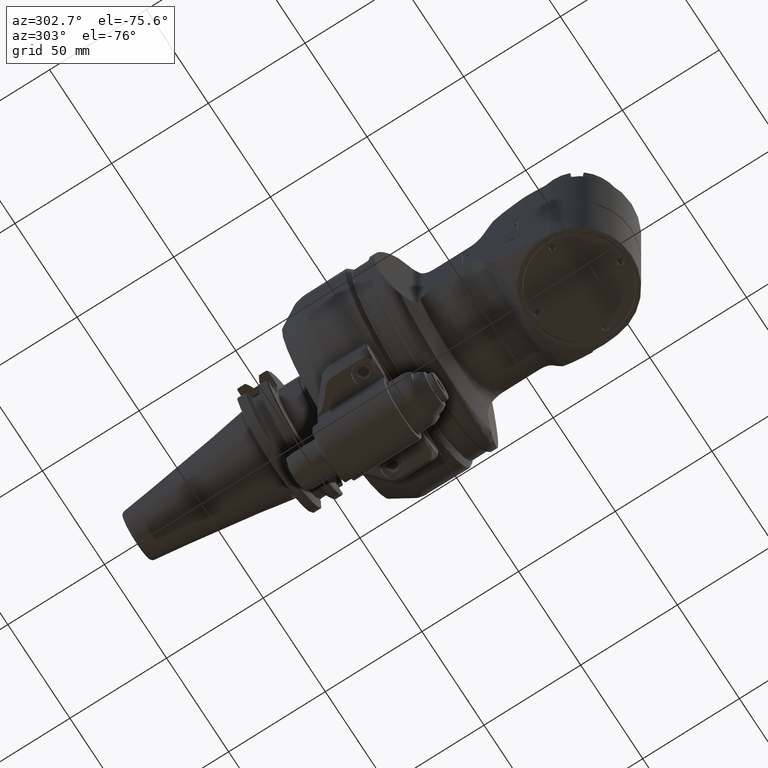
[diagram: clean part render]
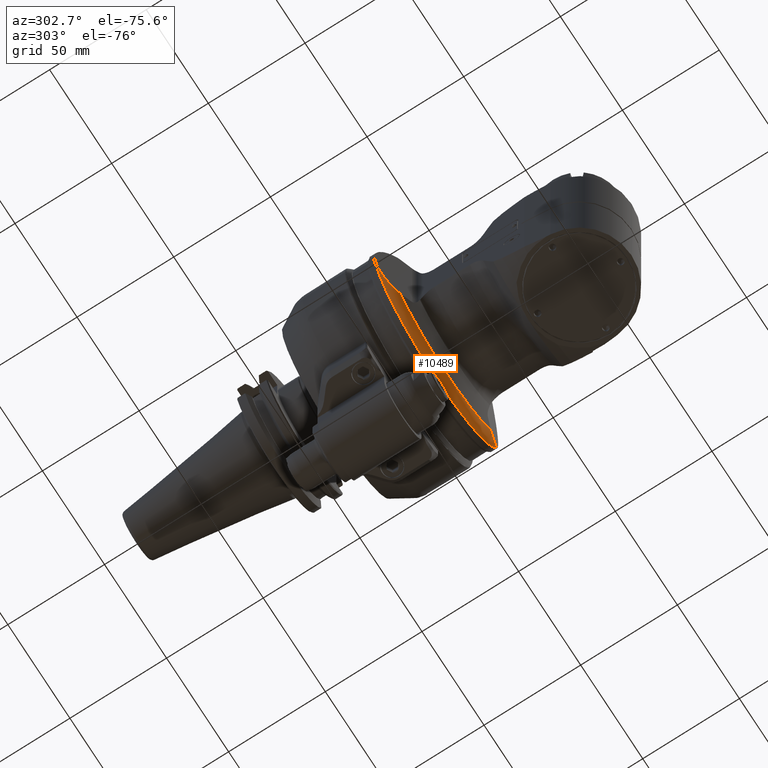
[diagram: same view with one face highlighted and labeled with its STEP entity id]
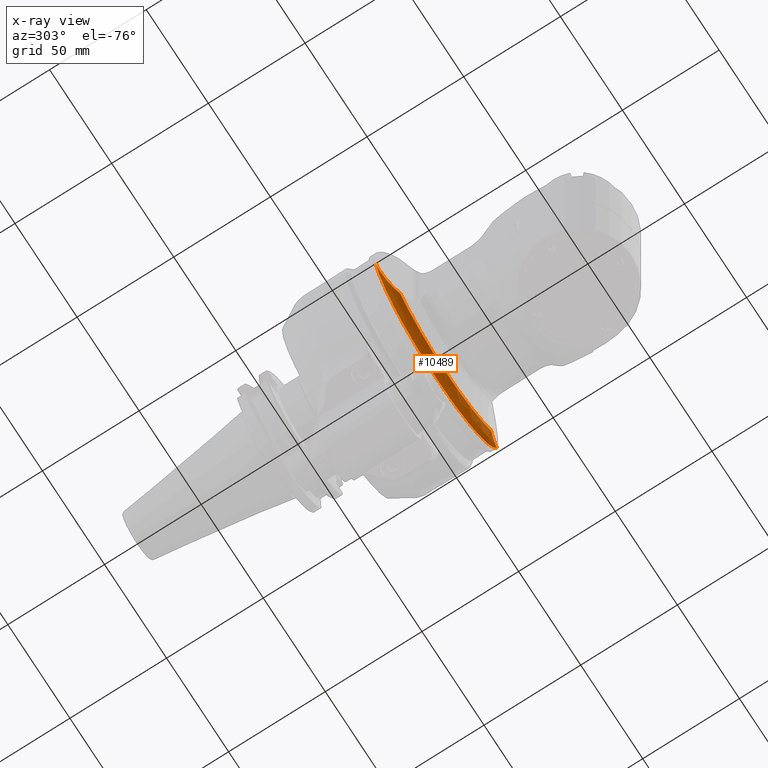
[diagram: x-ray of the same camera — body ghosted, the highlighted face saturated]
A machine part, auxiliary view. The second image highlights one B-rep face of the part: STEP entity #10489.
The next image is the same camera in x-ray: the body ghosted, the highlighted face saturated — about 0% of this face is hidden behind the body in this view.
In plain terms, the highlighted toroidal blend (fillet) surface has major radius 45 mm and minor (blend) radius 5 mm.
Its self-contained STEP definition (entity closure, byte-faithful):
#221=TOROIDAL_SURFACE('',#11307,45.,5.);
#479=B_SPLINE_CURVE_WITH_KNOTS('',3,(#16371,#16372,#16373,#16374,#16375,
#16376,#16377,#16378,#16379,#16380,#16381,#16382,#16383,#16384,#16385,#16386,
#16387,#16388),.UNSPECIFIED.,.F.,.F.,(4,2,2,2,2,2,2,2,4),(7.09037016510969,
7.87701940297548,8.17776761303021,8.47851582308494,8.80354910515076,9.12858238721658,
9.39474930405345,9.46225514204568,9.47110878449787),.UNSPECIFIED.);
#482=B_SPLINE_CURVE_WITH_KNOTS('',3,(#16437,#16438,#16439,#16440,#16441,
#16442,#16443,#16444,#16445,#16446,#16447,#16448,#16449,#16450,#16451,#16452,
#16453,#16454),.UNSPECIFIED.,.F.,.F.,(4,2,2,2,2,2,2,2,4),(2.93536062655263,
2.94421427000487,3.0117201079971,3.27788702483398,3.6029203068998,3.92795358896562,
4.22870179902035,4.52945000907508,5.31609924694026),.UNSPECIFIED.);
#833=CIRCLE('',#11297,47.11309145933);
#835=CIRCLE('',#11308,50.);
#1427=FACE_OUTER_BOUND('',#2076,.T.);
#2076=EDGE_LOOP('',(#7026,#7027,#7028,#7029));
#4261=VERTEX_POINT('',#16364);
#4262=VERTEX_POINT('',#16366);
#4263=VERTEX_POINT('',#16370);
#4268=VERTEX_POINT('',#16435);
#5334=EDGE_CURVE('',#4262,#4261,#833,.T.);
#5336=EDGE_CURVE('',#4263,#4262,#479,.T.);
#5344=EDGE_CURVE('',#4261,#4268,#482,.T.);
#5345=EDGE_CURVE('',#4268,#4263,#835,.T.);
#7026=ORIENTED_EDGE('',*,*,#5345,.T.);
#7027=ORIENTED_EDGE('',*,*,#5336,.T.);
#7028=ORIENTED_EDGE('',*,*,#5334,.T.);
#7029=ORIENTED_EDGE('',*,*,#5344,.T.);
#10489=ADVANCED_FACE('',(#1427),#221,.T.);
#11297=AXIS2_PLACEMENT_3D('',#16367,#12705,#12706);
#11307=AXIS2_PLACEMENT_3D('',#16455,#12725,#12726);
#11308=AXIS2_PLACEMENT_3D('',#16456,#12727,#12728);
#12705=DIRECTION('center_axis',(-1.,0.,0.));
#12706=DIRECTION('ref_axis',(0.,1.,1.598497119257E-10));
#12725=DIRECTION('center_axis',(-1.,0.,0.));
#12726=DIRECTION('ref_axis',(0.,1.,0.));
#12727=DIRECTION('center_axis',(1.,0.,0.));
#12728=DIRECTION('ref_axis',(0.,0.187279909699701,-0.982306589320703));
#16364=CARTESIAN_POINT('',(20.8461875034338,29.5857914051946,-36.6650287498088));
#16366=CARTESIAN_POINT('',(20.8461875004803,29.5857914026295,36.6650287600173));
#16367=CARTESIAN_POINT('Origin',(20.84618750067,0.,0.));
#16370=CARTESIAN_POINT('',(16.31464863572,9.363995485014,49.11532946603));
#16371=CARTESIAN_POINT('Ctrl Pts',(16.3146486357204,9.3639954850139,49.1153294660296));
#16372=CARTESIAN_POINT('Ctrl Pts',(16.5089546643471,12.1641130973679,48.5814780399138));
#16373=CARTESIAN_POINT('Ctrl Pts',(16.7970626489297,14.89268418197,47.7899078579087));
#16374=CARTESIAN_POINT('Ctrl Pts',(17.2779022721392,18.2335890551422,46.4688118507617));
#16375=CARTESIAN_POINT('Ctrl Pts',(17.4371534747882,19.2325943001655,46.0312727674626));
#16376=CARTESIAN_POINT('Ctrl Pts',(17.7890019232365,21.1784209335024,45.0645771002807));
#16377=CARTESIAN_POINT('Ctrl Pts',(17.9817805222086,22.1249619431992,44.5349222526508));
#16378=CARTESIAN_POINT('Ctrl Pts',(18.3765030725583,23.8625497430824,43.4504309586156));
#16379=CARTESIAN_POINT('Ctrl Pts',(18.6191470504405,24.8187856959593,42.7837721084178));
#16380=CARTESIAN_POINT('Ctrl Pts',(19.1522606848867,26.6017151146838,41.3190544357736));
#16381=CARTESIAN_POINT('Ctrl Pts',(19.4425932033076,27.4287590831445,40.5213723972789));
#16382=CARTESIAN_POINT('Ctrl Pts',(19.9758958164078,28.6338312433967,39.05613551005));
#16383=CARTESIAN_POINT('Ctrl Pts',(20.2825600158396,29.2079207962777,38.2135825467563));
#16384=CARTESIAN_POINT('Ctrl Pts',(20.6474740822835,29.5221310747006,37.2109893891602));
#16385=CARTESIAN_POINT('Ctrl Pts',(20.738047373882,29.5748920999617,36.9621413156877));
#16386=CARTESIAN_POINT('Ctrl Pts',(20.825030055835,29.5852601580148,36.7231583611383));
#16387=CARTESIAN_POINT('Ctrl Pts',(20.8354969146307,29.5858990840588,36.6944009029444));
#16388=CARTESIAN_POINT('Ctrl Pts',(20.8461875003858,29.5857914029915,36.6650287599816));
#16435=CARTESIAN_POINT('',(16.31464863573,9.36399548502,-49.11532946603));
#16437=CARTESIAN_POINT('Ctrl Pts',(20.8461875040092,29.585791402955,-36.6650287500264));
#16438=CARTESIAN_POINT('Ctrl Pts',(20.8354969169956,29.5858990842023,-36.694400896447));
#16439=CARTESIAN_POINT('Ctrl Pts',(20.8250300569742,29.5852601581505,-36.7231583580084));
#16440=CARTESIAN_POINT('Ctrl Pts',(20.738047373882,29.5748920999617,-36.9621413156877));
#16441=CARTESIAN_POINT('Ctrl Pts',(20.6474740822835,29.5221310747006,-37.2109893891602));
#16442=CARTESIAN_POINT('Ctrl Pts',(20.2825600158396,29.2079207962777,-38.2135825467563));
#16443=CARTESIAN_POINT('Ctrl Pts',(19.9758958164078,28.6338312433967,-39.05613551005));
#16444=CARTESIAN_POINT('Ctrl Pts',(19.4425932033076,27.4287590831445,-40.5213723972789));
#16445=CARTESIAN_POINT('Ctrl Pts',(19.1522606848867,26.6017151146837,-41.3190544357736));
#16446=CARTESIAN_POINT('Ctrl Pts',(18.6191470504405,24.8187856959593,-42.7837721084178));
#16447=CARTESIAN_POINT('Ctrl Pts',(18.3765030725583,23.8625497430824,-43.4504309586156));
#16448=CARTESIAN_POINT('Ctrl Pts',(17.9817805222086,22.1249619431992,-44.5349222526508));
#16449=CARTESIAN_POINT('Ctrl Pts',(17.7890019232365,21.1784209335023,-45.0645771002807));
#16450=CARTESIAN_POINT('Ctrl Pts',(17.4371534747882,19.2325943001655,-46.0312727674625));
#16451=CARTESIAN_POINT('Ctrl Pts',(17.2779022721392,18.2335890551422,-46.4688118507617));
#16452=CARTESIAN_POINT('Ctrl Pts',(16.79706264893,14.8926841819719,-47.789907857908));
#16453=CARTESIAN_POINT('Ctrl Pts',(16.5089546643476,12.164113097372,-48.5814780399126));
#16454=CARTESIAN_POINT('Ctrl Pts',(16.3146486357208,9.36399548502033,-49.1153294660284));
#16455=CARTESIAN_POINT('Origin',(16.31464863572,0.,0.));
#16456=CARTESIAN_POINT('Origin',(16.31464863572,0.,0.));